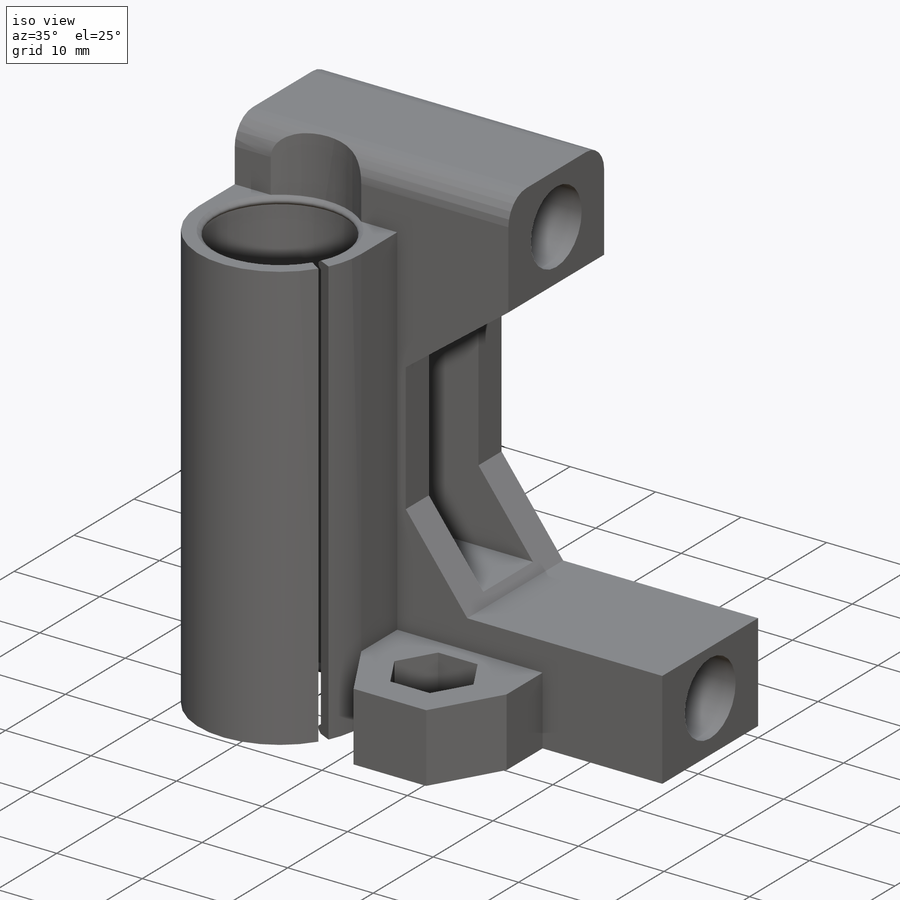
[diagram: iso view]
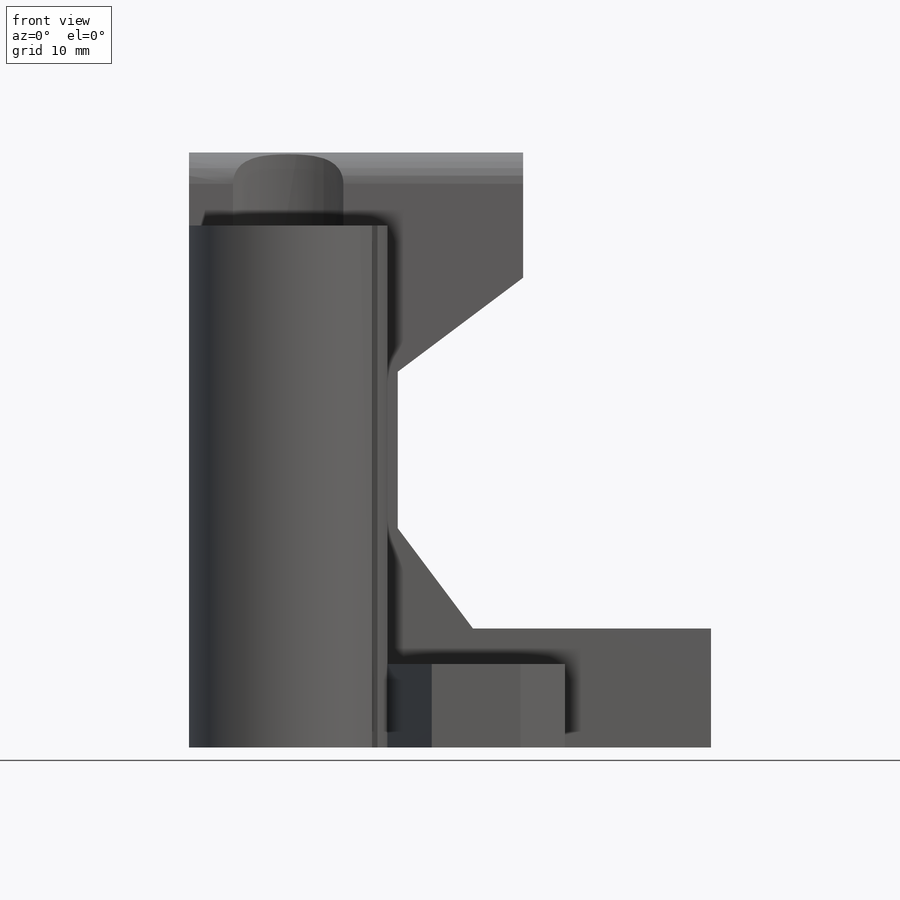
[diagram: front view]
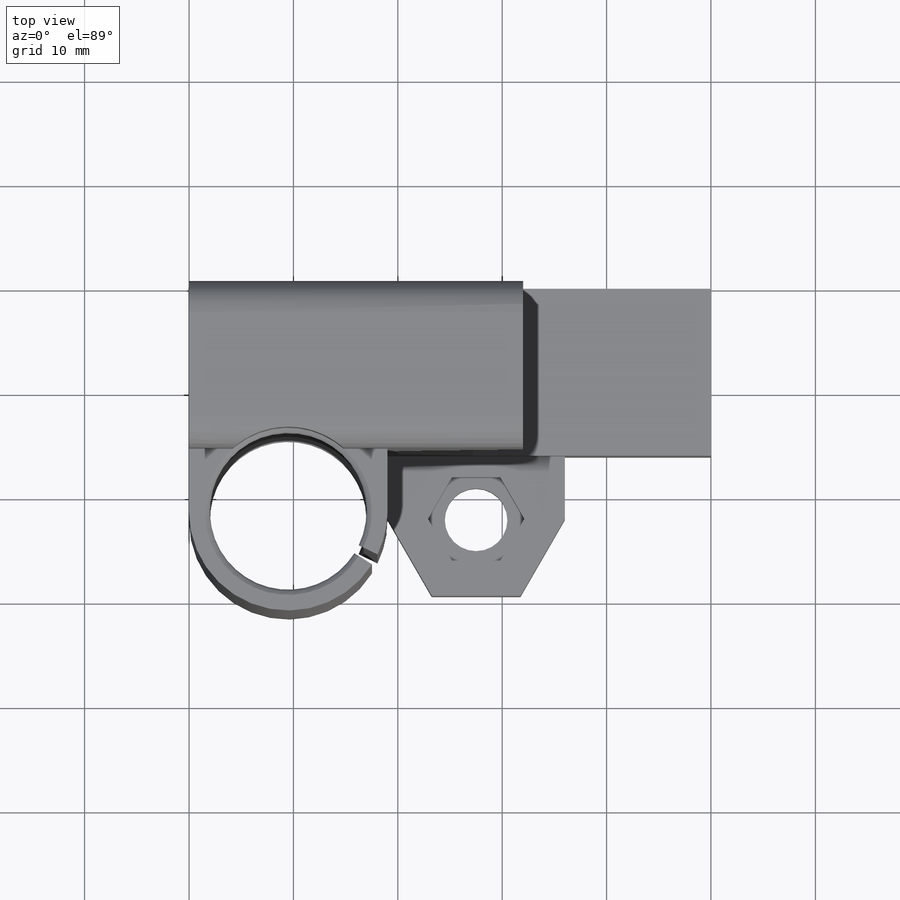
[diagram: top view]
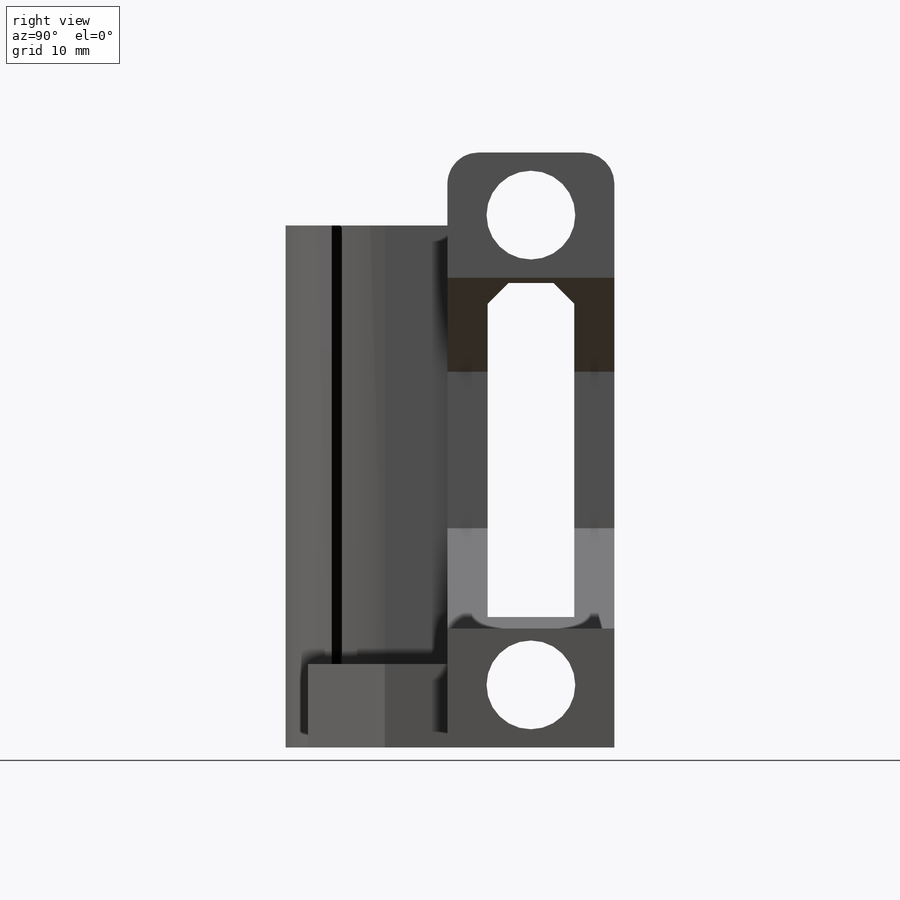
[diagram: right view]
SOLIDWORKS PART (.sldprt)
format: sldprt  version: not decoded by parser v0  size: 382,976 bytes
history: native  units: mm
features: fillet x8, plane x5, cut_extrude x4, extrude x3, material x1, sketch x1, sweep x1 (+10 scaffold rows collapsed)
feature tree (33):
  scaffold x10  (default folders/planes/origin — collapsed)
  material  "Matériau <non spécifié>"
  plane  "Plan de face"
  plane  "Plan de dessus"
  plane  "Plan de droite"
  sketch  "Esquisse1"  dims[D1=57.0mm D2=32.0mm D3=12.0mm D4=20.0mm D5=50.0mm D6=15.0mm D7=15.0mm D8=12.0mm]
  extrude  "Boss.-Extru.1"  Depth=16mm
  fillet  "Congé1"  Radius=3mm
  fillet  "Esquisse2"  Radius=8.5mm
  cut_extrude  "Enlèv. mat.-Extru.1"  [1 undecoded]
  plane  "Plan1"  Offset=7mm
  fillet  "Esquisse3"  Radius=16mm
  fillet  "Esquisse4"  Radius=10mm
  extrude  "Boss.-Extru.3"  Depth=50mm
  cut_extrude  "Enlèv. mat.-Extru.3"  Depth=50mm
  fillet  "Esquisse7"  Radius=15mm
  extrude  "Boss.-Extru.4"  Depth=8mm
  fillet  "Esquisse8"  Radius=8mm
  cut_extrude  "Enlèv. mat.-Extru.5"  Depth=4.5mm
  fillet  "Esquisse10"  Radius=6mm
  cut_extrude  "Enlèv. mat.-Extru.6"  [1 undecoded]
  plane  "Plan2"  Offset=9mm
  fillet  "Esquisse11"  Radius=0.5mm
  sweep  "Balayage1"
decode coverage: 14 of 17 modeling features carry decoded parameters
note: 2 parameter values undecoded
note: suppression state not decoded; provenance and decode notes live in map.json
